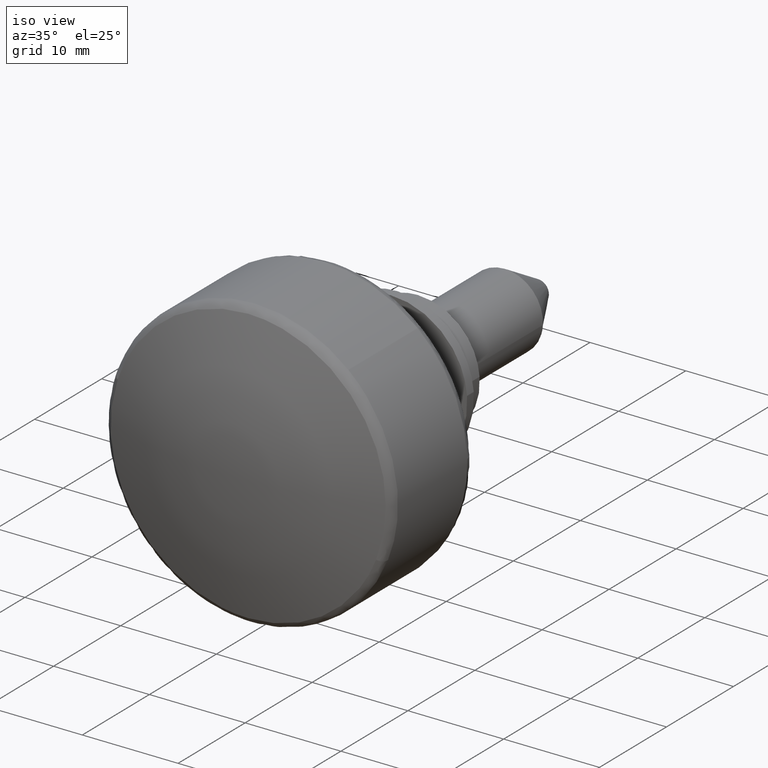
[diagram: clean part render]
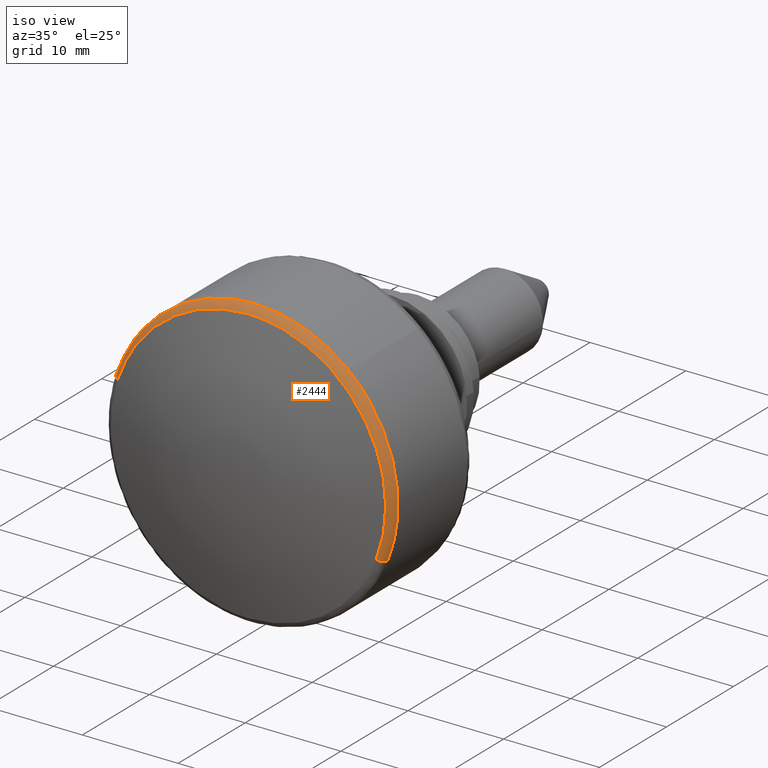
[diagram: same view with one face highlighted and labeled with its STEP entity id]
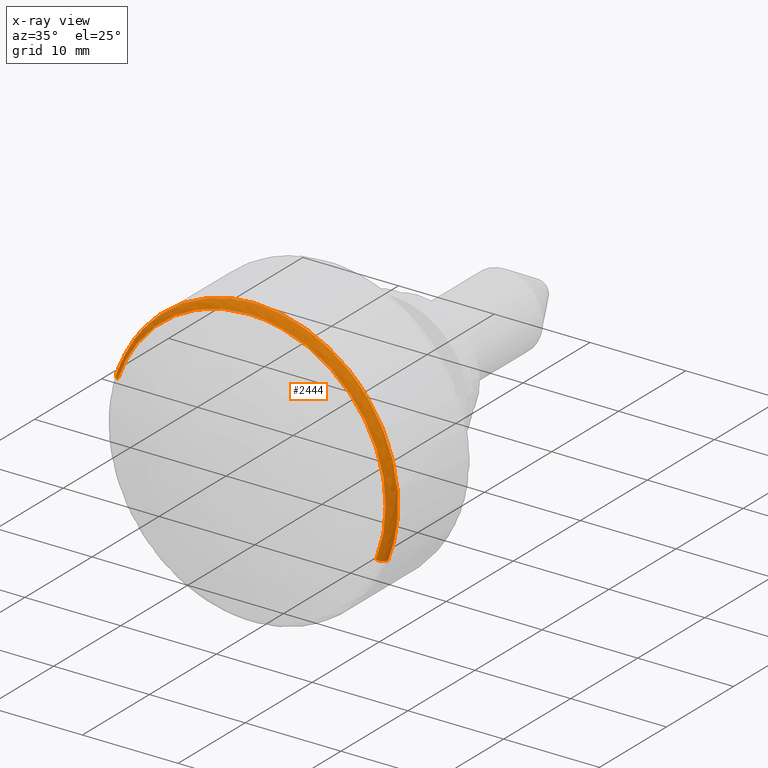
[diagram: x-ray of the same camera — body ghosted, the highlighted face saturated]
A machine part, iso view. The second image highlights one B-rep face of the part: STEP entity #2444.
The next image is the same camera in x-ray: the body ghosted, the highlighted face saturated — about 0% of this face is hidden behind the body in this view.
In plain terms, the highlighted face is a freeform B-spline surface patch.
Its self-contained STEP definition (entity closure, byte-faithful):
#1621=CARTESIAN_POINT('',(-14.327043465311441,-9.815094049586977,11.343012333492419));
#1622=VERTEX_POINT('',#1621);
#1628=CARTESIAN_POINT('',(-14.327043465391450,-13.946647288323000,-5.521868290272103));
#1629=VERTEX_POINT('',#1628);
#1630=CARTESIAN_POINT('',(-14.327043465311448,-9.815094049587003,11.343012333492448));
#1631=CARTESIAN_POINT('',(-14.327043465311437,-15.000000000000004,6.856519852892456));
#1632=CARTESIAN_POINT('',(-14.327043465311441,-15.0,0.0));
#1633=CARTESIAN_POINT('',(-14.327043465311437,-15.000000000000002,-2.861403033280688));
#1634=CARTESIAN_POINT('',(-14.327043465391453,-13.946647288323010,-5.521868290272103));
#1642=(BOUNDED_CURVE()B_SPLINE_CURVE(2,(#1630,#1631,#1632,#1633,#1634),.UNSPECIFIED.,.F.,.U.)B_SPLINE_CURVE_WITH_KNOTS((3,2,3),(0.614117869323052,0.750000000000000,0.812505050763747),.UNSPECIFIED.)CURVE()GEOMETRIC_REPRESENTATION_ITEM()RATIONAL_B_SPLINE_CURVE((0.854663299071176,0.840804181467194,1.0,0.926770777958831,0.890159125846246))REPRESENTATION_ITEM(''));
#1643=EDGE_CURVE('',#1622,#1629,#1642,.T.);
#1779=CARTESIAN_POINT('',(-14.327043465390380,14.239627476018679,4.715189216162353));
#1780=VERTEX_POINT('',#1779);
#1796=CARTESIAN_POINT('',(-14.327043465311441,0.0,15.0));
#1797=VERTEX_POINT('',#1796);
#1798=CARTESIAN_POINT('',(-14.327043465390382,14.239627476018688,4.715189216162353));
#1799=CARTESIAN_POINT('',(-14.327043465311446,10.834002646299609,14.999999999999995));
#1800=CARTESIAN_POINT('',(-14.327043465311441,0.0,15.0));
#1808=(BOUNDED_CURVE()B_SPLINE_CURVE(2,(#1798,#1799,#1800),.UNSPECIFIED.,.F.,.U.)B_SPLINE_CURVE_WITH_KNOTS((3,3),(0.303444232663925,0.500000000000000),.UNSPECIFIED.)CURVE()GEOMETRIC_REPRESENTATION_ITEM()RATIONAL_B_SPLINE_CURVE((0.901543151004119,0.769720594514356,1.0))REPRESENTATION_ITEM(''));
#1809=EDGE_CURVE('',#1780,#1797,#1808,.T.);
#1811=CARTESIAN_POINT('',(-14.327043465311441,0.0,15.0));
#1812=CARTESIAN_POINT('',(-14.327043465311441,-5.588822146836324,15.000000000000004));
#1813=CARTESIAN_POINT('',(-14.327043465311448,-9.815094049587003,11.343012333492448));
#1821=(BOUNDED_CURVE()B_SPLINE_CURVE(2,(#1811,#1812,#1813),.UNSPECIFIED.,.F.,.U.)B_SPLINE_CURVE_WITH_KNOTS((3,3),(0.500000000000000,0.614117869323052),.UNSPECIFIED.)CURVE()GEOMETRIC_REPRESENTATION_ITEM()RATIONAL_B_SPLINE_CURVE((1.0,0.866302599719354,0.854663299071176))REPRESENTATION_ITEM(''));
#1822=EDGE_CURVE('',#1797,#1622,#1821,.T.);
#2350=CARTESIAN_POINT('',(-15.275719198547590,13.590537978131723,4.500256068900550));
#2351=CARTESIAN_POINT('',(-15.275719198547584,13.461742707165506,4.889211051610607));
#2352=CARTESIAN_POINT('',(-15.275719198547586,13.310913043381374,5.270163296545595));
#2353=CARTESIAN_POINT('',(-15.275719198547590,8.040749746835781,18.581076339926966));
#2354=CARTESIAN_POINT('',(-15.275719198547586,-5.270163296545594,13.310913043381374));
#2355=CARTESIAN_POINT('',(-15.275719198547590,-18.581076339926966,8.040749746835781));
#2356=CARTESIAN_POINT('',(-15.275719198547586,-13.310913043381374,-5.270163296545592));
#2357=CARTESIAN_POINT('',(-15.034110626661432,14.278566315342957,4.728083966890504));
#2358=CARTESIAN_POINT('',(-15.034110626661425,14.143250714109755,5.136730006013096));
#2359=CARTESIAN_POINT('',(-15.034110626661432,13.984785217002278,5.536968164431513));
#2360=CARTESIAN_POINT('',(-15.034110626661423,8.447817052570770,19.521753381433797));
#2361=CARTESIAN_POINT('',(-15.034110626661432,-5.536968164431513,13.984785217002278));
#2362=CARTESIAN_POINT('',(-15.034110626661423,-19.521753381433797,8.447817052570770));
#2363=CARTESIAN_POINT('',(-15.034110626661432,-13.984785217002278,-5.536968164431510));
#2364=CARTESIAN_POINT('',(-14.271319138471743,14.238152173192434,4.714701568873964));
#2365=CARTESIAN_POINT('',(-14.271319138471750,14.103219570071404,5.122190973727425));
#2366=CARTESIAN_POINT('',(-14.271319138471748,13.945202594684160,5.521296295594106));
#2367=CARTESIAN_POINT('',(-14.271319138471748,8.423906299090055,19.466498890278270));
#2368=CARTESIAN_POINT('',(-14.271319138471748,-5.521296295594104,13.945202594684160));
#2369=CARTESIAN_POINT('',(-14.271319138471748,-19.466498890278270,8.423906299090055));
#2370=CARTESIAN_POINT('',(-14.271319138471748,-13.945202594684160,-5.521296295594104));
#2378=(BOUNDED_SURFACE()B_SPLINE_SURFACE(2,2,((#2350,#2357,#2364),(#2351,#2358,#2365),(#2352,#2359,#2366),(#2353,#2360,#2367),(#2354,#2361,#2368),(#2355,#2362,#2369),(#2356,#2363,#2370)),.UNSPECIFIED.,.F.,.F.,.U.)B_SPLINE_SURFACE_WITH_KNOTS((3,2,2,3),(3,3),(0.0,0.994008624434330,25.844247934327559,50.694487244220788),(0.0,1.353108793930161),.UNSPECIFIED.)GEOMETRIC_REPRESENTATION_ITEM()RATIONAL_B_SPLINE_SURFACE(((0.900784480117534,0.714341384470964,0.897126251215800),(0.910716973854792,0.722218064724820,0.907018407517790),(0.921513161804328,0.730779672986403,0.917770750432629),(0.651608205664496,0.516739262321973,0.648961921205579),(0.921513161804328,0.730779672986403,0.917770750432629),(0.651608205664496,0.516739262321973,0.648961921205579),(0.921513161804328,0.730779672986403,0.917770750432629)))REPRESENTATION_ITEM('')SURFACE());
#2379=CARTESIAN_POINT('',(-15.256702503872249,0.0,14.368421052631540));
#2380=VERTEX_POINT('',#2379);
#2381=CARTESIAN_POINT('',(-15.256702503002289,13.640064215933929,4.516654934128848));
#2382=VERTEX_POINT('',#2381);
#2383=CARTESIAN_POINT('',(-15.256702503872249,0.0,14.368421052631540));
#2384=CARTESIAN_POINT('',(-15.256702503872249,10.377834113724052,14.368421052631536));
#2385=CARTESIAN_POINT('',(-15.256702503002295,13.640064215933931,4.516654934128848));
#2393=(BOUNDED_CURVE()B_SPLINE_CURVE(2,(#2383,#2384,#2385),.UNSPECIFIED.,.F.,.U.)B_SPLINE_CURVE_WITH_KNOTS((3,3),(0.500000000000000,0.696555767334621),.UNSPECIFIED.)CURVE()GEOMETRIC_REPRESENTATION_ITEM()RATIONAL_B_SPLINE_CURVE((1.0,0.769720594516059,0.901543151002169))REPRESENTATION_ITEM(''));
#2394=EDGE_CURVE('',#2380,#2382,#2393,.T.);
#2395=ORIENTED_EDGE('',*,*,#2394,.F.);
#2396=CARTESIAN_POINT('',(-15.256702503107171,-13.359420035854139,-5.289368573544957));
#2397=VERTEX_POINT('',#2396);
#2398=CARTESIAN_POINT('',(-15.256702503107174,-13.359420035854136,-5.289368573544957));
#2399=CARTESIAN_POINT('',(-15.256702503872249,-14.368421052631543,-2.740922905616286));
#2400=CARTESIAN_POINT('',(-15.256702503872249,-14.368421052631540,0.0));
#2401=CARTESIAN_POINT('',(-15.256702503872257,-14.368421052631538,14.368421052631538));
#2402=CARTESIAN_POINT('',(-15.256702503872249,0.0,14.368421052631540));
#2410=(BOUNDED_CURVE()B_SPLINE_CURVE(2,(#2398,#2399,#2400,#2401,#2402),.UNSPECIFIED.,.F.,.U.)B_SPLINE_CURVE_WITH_KNOTS((3,2,3),(0.187494949235139,0.250000000000000,0.500000000000000),.UNSPECIFIED.)CURVE()GEOMETRIC_REPRESENTATION_ITEM()RATIONAL_B_SPLINE_CURVE((0.890159125844942,0.926770777957527,1.0,0.707106781186547,1.0))REPRESENTATION_ITEM(''));
#2411=EDGE_CURVE('',#2397,#2380,#2410,.T.);
#2412=ORIENTED_EDGE('',*,*,#2411,.F.);
#2413=CARTESIAN_POINT('',(-15.256702503107181,-13.359420035854141,-5.289368573544957));
#2414=CARTESIAN_POINT('',(-15.006409682806121,-13.946647288222717,-5.521868290230152));
#2415=CARTESIAN_POINT('',(-14.327043465391446,-13.946647288323005,-5.521868290272103));
#2423=(BOUNDED_CURVE()B_SPLINE_CURVE(2,(#2413,#2414,#2415),.UNSPECIFIED.,.F.,.U.)B_SPLINE_CURVE_WITH_KNOTS((3,3),(-1.675526647627337,-0.339037320909828),.UNSPECIFIED.)CURVE()GEOMETRIC_REPRESENTATION_ITEM()RATIONAL_B_SPLINE_CURVE((0.904968416644587,0.747154401147902,0.901566036643014))REPRESENTATION_ITEM(''));
#2424=EDGE_CURVE('',#2397,#1629,#2423,.T.);
#2425=ORIENTED_EDGE('',*,*,#2424,.T.);
#2426=ORIENTED_EDGE('',*,*,#1643,.F.);
#2427=ORIENTED_EDGE('',*,*,#1822,.F.);
#2428=ORIENTED_EDGE('',*,*,#1809,.F.);
#2429=CARTESIAN_POINT('',(-15.256702503002284,13.640064215933929,4.516654934128848));
#2430=CARTESIAN_POINT('',(-15.006409682389457,14.239627475918562,4.715189216123598));
#2431=CARTESIAN_POINT('',(-14.327043465390382,14.239627476018679,4.715189216162353));
#2439=(BOUNDED_CURVE()B_SPLINE_CURVE(2,(#2429,#2430,#2431),.UNSPECIFIED.,.F.,.U.)B_SPLINE_CURVE_WITH_KNOTS((3,3),(-1.675526646948971,-0.339037320907277),.UNSPECIFIED.)CURVE()GEOMETRIC_REPRESENTATION_ITEM()RATIONAL_B_SPLINE_CURVE((0.884611876649865,0.730347761288002,0.881286030618994))REPRESENTATION_ITEM(''));
#2440=EDGE_CURVE('',#2382,#1780,#2439,.T.);
#2441=ORIENTED_EDGE('',*,*,#2440,.F.);
#2442=EDGE_LOOP('',(#2395,#2412,#2425,#2426,#2427,#2428,#2441));
#2443=FACE_OUTER_BOUND('',#2442,.T.);
#2444=ADVANCED_FACE('',(#2443),#2378,.T.);